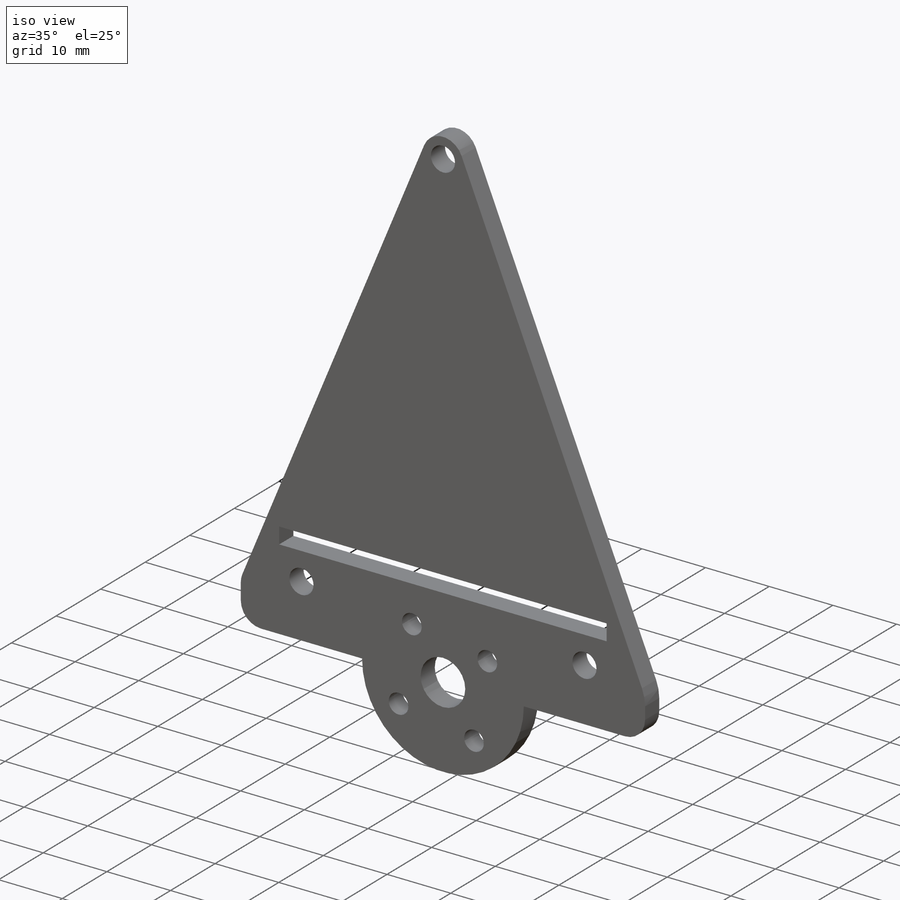
[diagram: iso view]
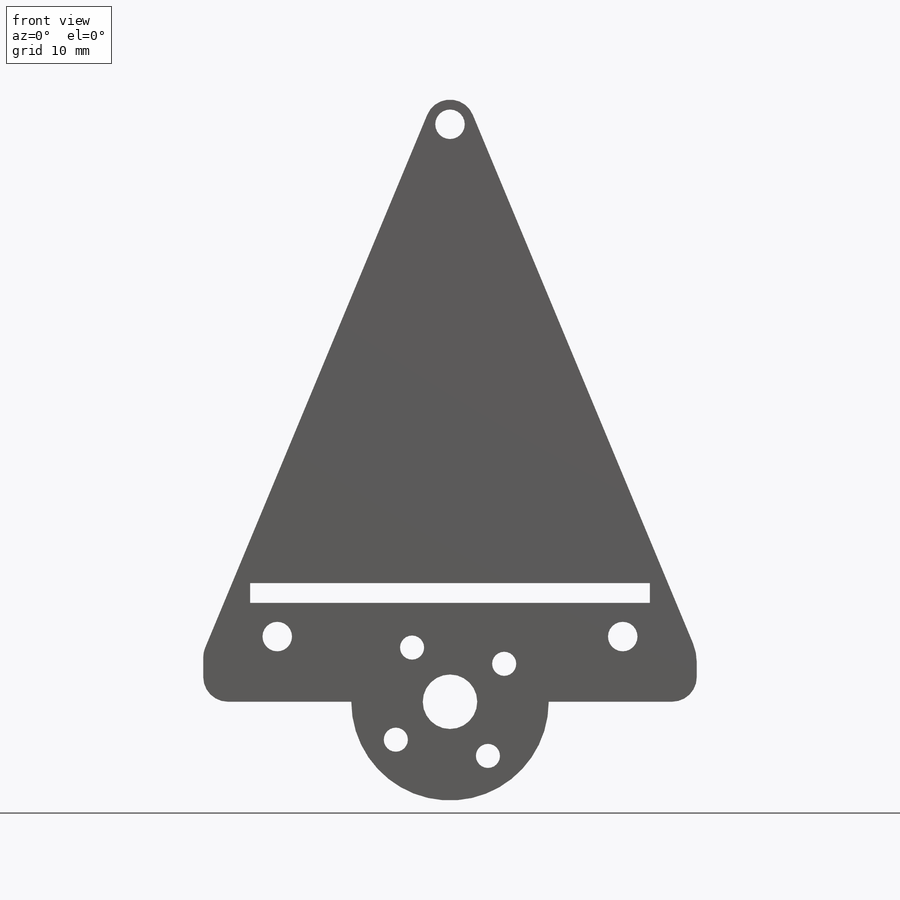
[diagram: front view]
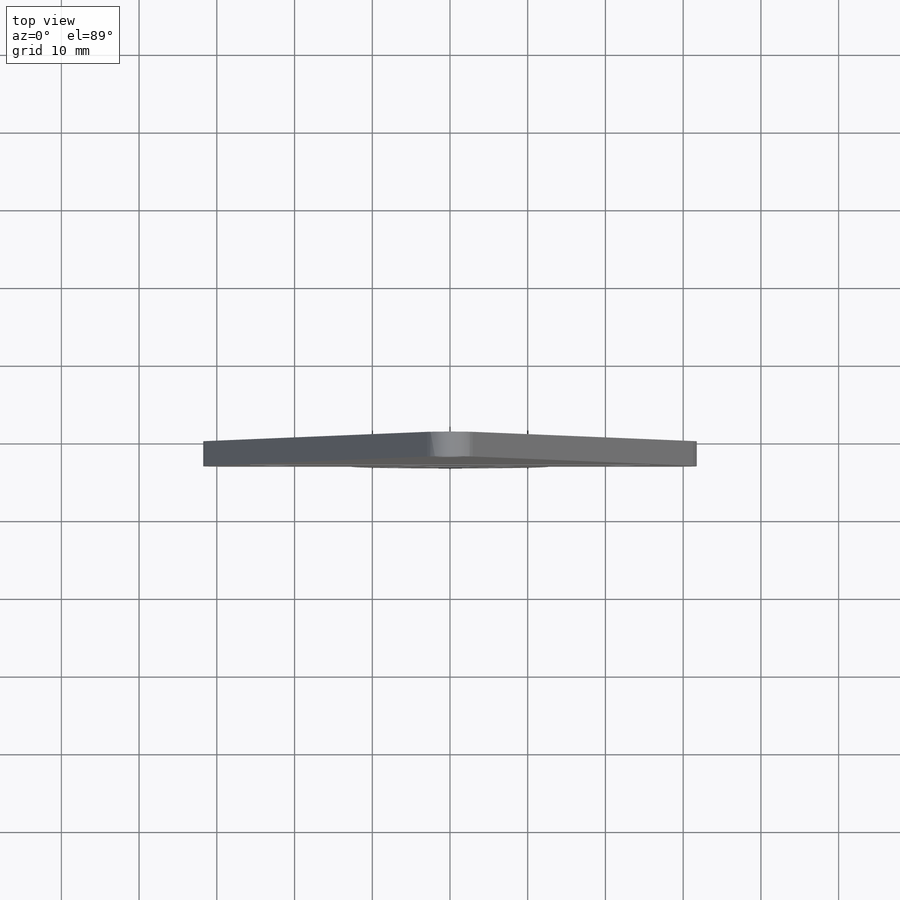
[diagram: top view]
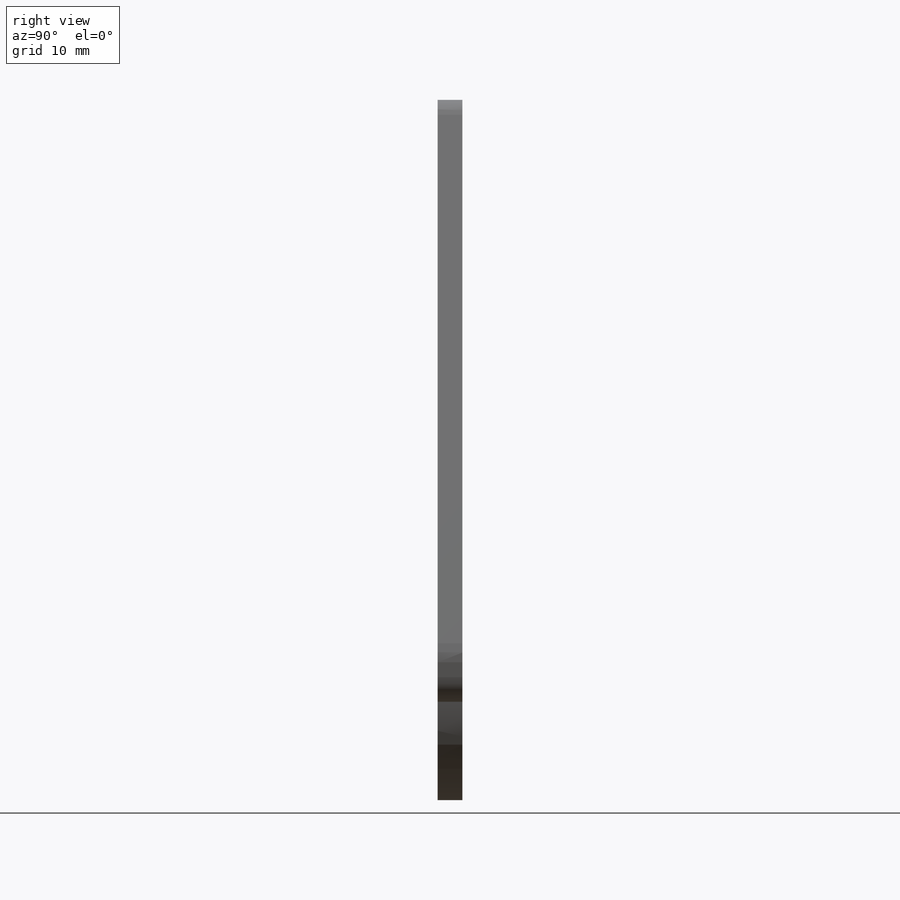
[diagram: right view]
SOLIDWORKS PART (.sldprt)
format: sldprt  version: not decoded by parser v0  size: 249,856 bytes
history: native  units: mm
features: sketch x5, fillet x5, cut_extrude x4, material x1, extrude x1 (+11 scaffold rows collapsed)
feature tree (27):
  scaffold x11  (default folders/planes/origin — collapsed)
  material  "Material <not specified>"
  sketch  "Sketch1"  dims[D3=12.7mm D1=31.75mm D2=76.2mm D4=6.35mm D5=12.7mm]
  extrude  "Boss-Extrude1"  Depth=3.175mm
  fillet  "Fillet4"  Radius=3.175mm
  fillet  "Fillet5"  Radius=3.175mm
  fillet  "Fillet6"  Radius=3.175mm
  fillet  "Fillet7"  Radius=6.35mm
  fillet  "Fillet8"  Radius=3.175mm
  sketch  "Sketch2"  dims[c1.D1=7.0104mm c1.D3=3.0988mm c1.D6=3.0988mm c1.D2=8.509mm c1.D4=8.509mm c2.D4=55.0deg c2.D5=8.509mm]
  cut_extrude  "Cut-Extrude1"  [1 undecoded]
  sketch  "Sketch4"  dims[c1.D1=25.0mm c1.D2=51.435mm c1.D3=2.54mm c1.D4=14.505mm c2.D1=15.255mm]
  cut_extrude  "Cut-Extrude2"  [1 undecoded]
  sketch  "Sketch10"  dims[c1.D2=3.7973mm c1.D1=3.7973mm c1.D3=3.7973mm c2.D1=3.175mm c2.D3=22.225mm c3.D1=4.3307mm c3.D3=4.3307mm]
  cut_extrude  "Cut-Extrude3"  [1 undecoded]
  sketch  "Sketch11"  dims[D1=3.7973mm D3=6.35mm D2=3.175mm]
  cut_extrude  "Cut-Extrude4"  [1 undecoded]
decode coverage: 11 of 15 modeling features carry decoded parameters
note: 4 parameter values undecoded
summary: no parameter record found for 4 features
note: suppression state not decoded; provenance and decode notes live in map.json
